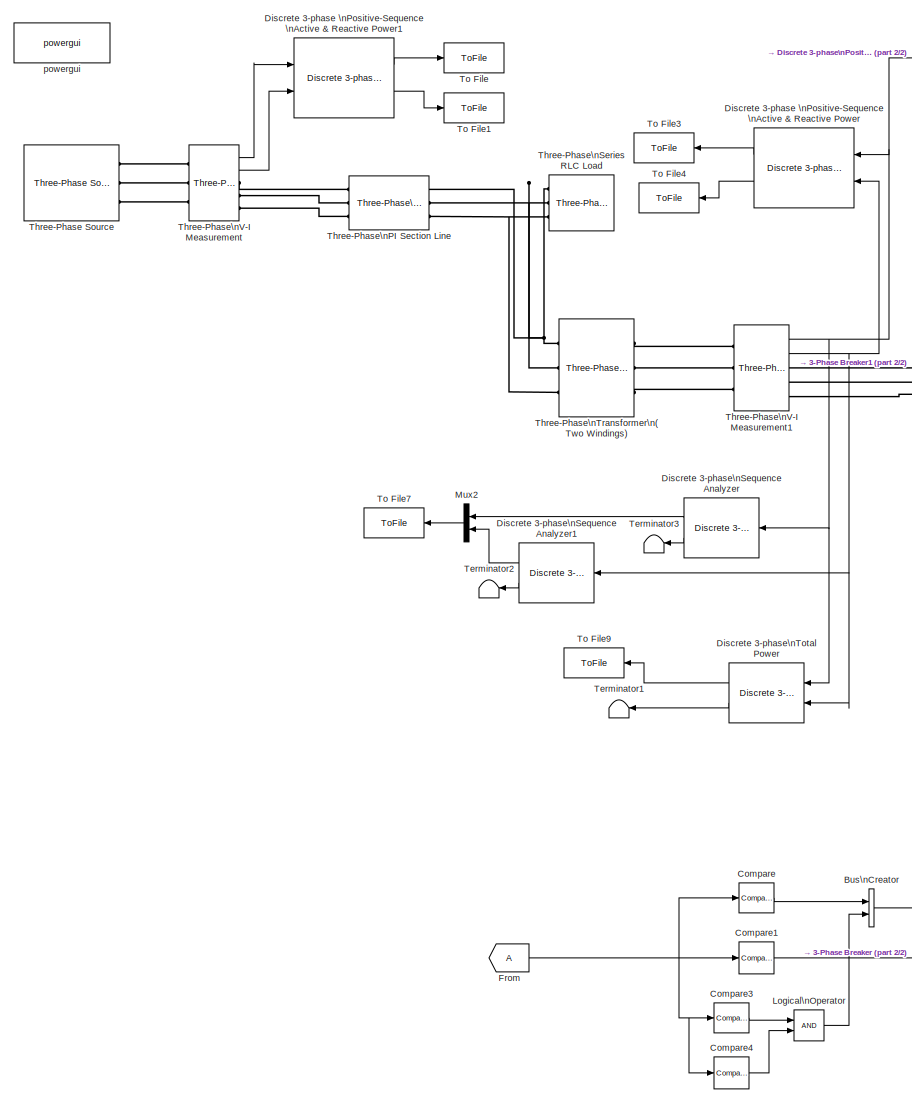
[diagram: root canvas - part 1/2, left side, full height]
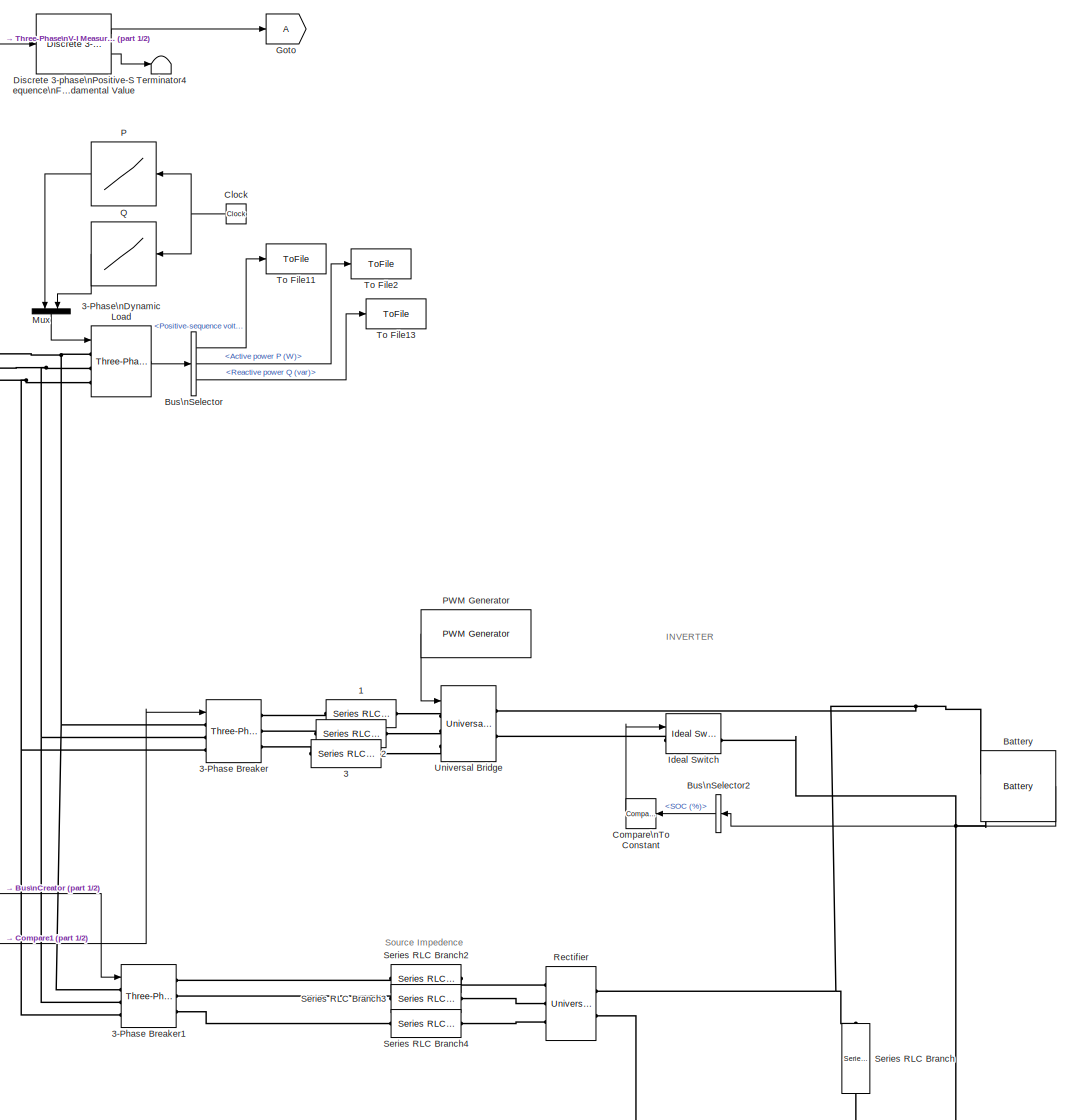
[diagram: root canvas - part 2/2, right side, full height]
MODEL MOTHERofALL3
KIND model
BLOCK [Reference] 1  REF=powerlib/Elements/Series RLC Branch
  BranchType = L
  Capacitance = 1e-6
  Inductance = 1
  InitialCurrent = 0
  InitialVoltage = 0
  LConnTagsString = __new0
  LeftPortType = p1
  Measurements = None
  PhysicalDomain = powersysdomain
  Ports = [0, 0, 0, 0, 0, 1, 1]
  RConnTagsString = __new0
  Resistance = 1
  RightPortType = p1
  SID = 85
  SetiL0 = off
  Setx0 = off
  SourceBlock = powerlib/Elements/Series RLC Branch
  SourceType = Series RLC Branch
  SubClassName = unknown
BLOCK [Reference] 2  REF=powerlib/Elements/Series RLC Branch
  BranchType = L
  Capacitance = 1e-6
  Inductance = 1
  InitialCurrent = 0
  InitialVoltage = 0
  LConnTagsString = __new0
  LeftPortType = p1
  Measurements = None
  PhysicalDomain = powersysdomain
  Ports = [0, 0, 0, 0, 0, 1, 1]
  RConnTagsString = __new0
  Resistance = 1
  RightPortType = p1
  SID = 86
  SetiL0 = off
  Setx0 = off
  SourceBlock = powerlib/Elements/Series RLC Branch
  SourceType = Series RLC Branch
  SubClassName = unknown
BLOCK [Reference] 3  REF=powerlib/Elements/Series RLC Branch
  BranchType = L
  Capacitance = 1e-6
  Inductance = 1
  InitialCurrent = 0
  InitialVoltage = 0
  LConnTagsString = __new0
  LeftPortType = p1
  Measurements = None
  PhysicalDomain = powersysdomain
  Ports = [0, 0, 0, 0, 0, 1, 1]
  RConnTagsString = __new0
  Resistance = 1
  RightPortType = p1
  SID = 87
  SetiL0 = off
  Setx0 = off
  SourceBlock = powerlib/Elements/Series RLC Branch
  SourceType = Series RLC Branch
  SubClassName = unknown
BLOCK [Reference] 3-Phase Breaker  REF=powerlib/Elements/Three-Phase Breaker
  BreakerResistance = 0.001
  External = on
  FunctionWithSeparateData = off
  GeneratePreprocessorConditionals = off
  InitialState = open
  Measurements = None
  Ports = [1, 0, 0, 0, 0, 3, 3]
  RTWMemSecDataConstants = Inherit from model
  RTWMemSecDataInternal = Inherit from model
  RTWMemSecDataParameters = Inherit from model
  RTWMemSecFuncExecute = Inherit from model
  RTWMemSecFuncInitTerm = Inherit from model
  SID = 88
  ShowPortLabels = FromPortIcon
  SnubberCapacitance = inf
  SnubberResistance = 1e6
  SourceBlock = powerlib/Elements/Three-Phase Breaker
  SourceType = Three-Phase Breaker
  SwitchA = on
  SwitchB = on
  SwitchC = on
  SwitchTimes = [4/60  10/60]
  SystemSampleTime = -1
BLOCK [Reference] 3-Phase Breaker1  REF=powerlib/Elements/Three-Phase Breaker
  BreakerResistance = 0.001
  External = on
  FunctionWithSeparateData = off
  GeneratePreprocessorConditionals = off
  InitialState = open
  Measurements = None
  Ports = [1, 0, 0, 0, 0, 3, 3]
  RTWMemSecDataConstants = Inherit from model
  RTWMemSecDataInternal = Inherit from model
  RTWMemSecDataParameters = Inherit from model
  RTWMemSecFuncExecute = Inherit from model
  RTWMemSecFuncInitTerm = Inherit from model
  SID = 89
  ShowPortLabels = FromPortIcon
  SnubberCapacitance = inf
  SnubberResistance = 1e6
  SourceBlock = powerlib/Elements/Three-Phase Breaker
  SourceType = Three-Phase Breaker
  SwitchA = on
  SwitchB = on
  SwitchC = on
  SwitchTimes = [4/60  10/60]
  SystemSampleTime = -1
BLOCK [Reference] 3-Phase\nDynamic Load  REF=powerlib/Elements/Three-Phase\nDynamic Load
  ActiveReactivePowers = [50 25]
  ExternalControl = on
  FunctionWithSeparateData = off
  GeneratePreprocessorConditionals = off
  LoadFlowParameters = [4 50 0 0 25]
  MinimumVoltage = 0.7
  NominalVoltage = [ 400 60 ]
  NpNq = [1  1]
  Ports = [1, 1, 0, 0, 0, 3]
  PositiveSequence = [0.292838 -10.4312]
  RTWMemSecDataConstants = Inherit from model
  RTWMemSecDataInternal = Inherit from model
  RTWMemSecDataParameters = Inherit from model
  RTWMemSecFuncExecute = Inherit from model
  RTWMemSecFuncInitTerm = Inherit from model
  SID = 9
  ShowPortLabels = FromPortIcon
  SourceBlock = powerlib/Elements/Three-Phase\nDynamic Load
  SourceType = Three-Phase Dynamic Load
  SystemSampleTime = -1
  TimeConstants = [0  0  0  0]
BLOCK [Reference] Battery  REF=electricdrivelib/Extra Sources/Battery
  BatType = Lead-Acid
  Batt_Tr = 30
  Dis_Char = off
  Dis_rate = 0.3
  FullV = 1.4136
  FunctionWithSeparateData = off
  GeneratePreprocessorConditionals = off
  MaxQ = 1.6154
  NomQ = 10
  NomV = 240
  Normal_OP = 1.4423
  Ports = [0, 1, 0, 0, 0, 2]
  PresetModel = off
  R = 0.008
  RTWMemSecDataConstants = Inherit from model
  RTWMemSecDataInternal = Inherit from model
  RTWMemSecDataParameters = Inherit from model
  RTWMemSecFuncExecute = Inherit from model
  RTWMemSecFuncInitTerm = Inherit from model
  SID = 90
  SOC = 80
  ShowDetailedParameters = off
  ShowPortLabels = FromPortIcon
  SourceBlock = electricdrivelib/Extra Sources/Battery
  SourceType = Battery
  SystemSampleTime = -1
  Units = Ampere-hour
  current = [1.5 3]
  expZone = [1.3017         0.3]
BLOCK [BusCreator] Bus\nCreator
  DisplayOption = bar
  Inputs = 2
  Ports = [2, 1]
  SID = 141
BLOCK [BusSelector] Bus\nSelector
  OutputSignals = Positive-sequence voltage V (pu),Active power P (W),Reactive power Q (var)
  Ports = [1, 3]
  SID = 67
BLOCK [BusSelector] Bus\nSelector2
  OutputSignals = SOC (%)
  Ports = [1, 1]
  SID = 91
BLOCK [Clock] Clock
  Decimation = 1
  SID = 12
BLOCK [Reference] Compare  REF=simulink/Logic and Bit\nOperations/Compare\nTo Constant
  FunctionWithSeparateData = off
  GeneratePreprocessorConditionals = off
  LogicOutDataTypeMode = uint8
  Ports = [1, 1]
  RTWMemSecDataConstants = Inherit from model
  RTWMemSecDataInternal = Inherit from model
  RTWMemSecDataParameters = Inherit from model
  RTWMemSecFuncExecute = Inherit from model
  RTWMemSecFuncInitTerm = Inherit from model
  SID = 92
  ShowPortLabels = FromPortIcon
  SourceBlock = simulink/Logic and Bit\nOperations/Compare\nTo Constant
  SourceType = Compare To Constant
  SystemSampleTime = -1
  ZeroCross = on
  const = 265
  relop = >=
BLOCK [Reference] Compare1  REF=simulink/Logic and Bit\nOperations/Compare\nTo Constant
  FunctionWithSeparateData = off
  GeneratePreprocessorConditionals = off
  LogicOutDataTypeMode = uint8
  Ports = [1, 1]
  RTWMemSecDataConstants = Inherit from model
  RTWMemSecDataInternal = Inherit from model
  RTWMemSecDataParameters = Inherit from model
  RTWMemSecFuncExecute = Inherit from model
  RTWMemSecFuncInitTerm = Inherit from model
  SID = 94
  ShowPortLabels = FromPortIcon
  SourceBlock = simulink/Logic and Bit\nOperations/Compare\nTo Constant
  SourceType = Compare To Constant
  SystemSampleTime = -1
  ZeroCross = on
  const = 260
  relop = <=
BLOCK [Reference] Compare3  REF=simulink/Logic and Bit\nOperations/Compare\nTo Constant
  FunctionWithSeparateData = off
  GeneratePreprocessorConditionals = off
  LogicOutDataTypeMode = uint8
  Ports = [1, 1]
  RTWMemSecDataConstants = Inherit from model
  RTWMemSecDataInternal = Inherit from model
  RTWMemSecDataParameters = Inherit from model
  RTWMemSecFuncExecute = Inherit from model
  RTWMemSecFuncInitTerm = Inherit from model
  SID = 95
  ShowPortLabels = FromPortIcon
  SourceBlock = simulink/Logic and Bit\nOperations/Compare\nTo Constant
  SourceType = Compare To Constant
  SystemSampleTime = -1
  ZeroCross = on
  const = 265
  relop = <
BLOCK [Reference] Compare4  REF=simulink/Logic and Bit\nOperations/Compare\nTo Constant
  FunctionWithSeparateData = off
  GeneratePreprocessorConditionals = off
  LogicOutDataTypeMode = uint8
  Ports = [1, 1]
  RTWMemSecDataConstants = Inherit from model
  RTWMemSecDataInternal = Inherit from model
  RTWMemSecDataParameters = Inherit from model
  RTWMemSecFuncExecute = Inherit from model
  RTWMemSecFuncInitTerm = Inherit from model
  SID = 96
  ShowPortLabels = FromPortIcon
  SourceBlock = simulink/Logic and Bit\nOperations/Compare\nTo Constant
  SourceType = Compare To Constant
  SystemSampleTime = -1
  ZeroCross = on
  const = 265
  relop = >
BLOCK [Reference] Compare\nTo Constant  REF=simulink/Logic and Bit\nOperations/Compare\nTo Constant
  FunctionWithSeparateData = off
  GeneratePreprocessorConditionals = off
  LogicOutDataTypeMode = uint8
  Ports = [1, 1]
  RTWMemSecDataConstants = Inherit from model
  RTWMemSecDataInternal = Inherit from model
  RTWMemSecDataParameters = Inherit from model
  RTWMemSecFuncExecute = Inherit from model
  RTWMemSecFuncInitTerm = Inherit from model
  SID = 93
  ShowPortLabels = FromPortIcon
  SourceBlock = simulink/Logic and Bit\nOperations/Compare\nTo Constant
  SourceType = Compare To Constant
  SystemSampleTime = -1
  ZeroCross = on
  const = 25
  relop = >=
BLOCK [Reference] Discrete 3-phase \nPositive-Sequence \nActive & Reactive Power  REF=powerlib_extras/Discrete\nMeasurements/Discrete 3-phase \nPositive-Sequence \nActive & Reactive Power
  Freq = 60
  FunctionWithSeparateData = off
  GeneratePreprocessorConditionals = off
  Par_Iinit = [0 0]
  Par_Vinit = [0 0]
  Ports = [2, 2]
  RTWMemSecDataConstants = Inherit from model
  RTWMemSecDataInternal = Inherit from model
  RTWMemSecDataParameters = Inherit from model
  RTWMemSecFuncExecute = Inherit from model
  RTWMemSecFuncInitTerm = Inherit from model
  SID = 34
  ShowPortLabels = FromPortIcon
  SourceBlock = powerlib_extras/Discrete\nMeasurements/Discrete 3-phase \nPositive-Sequence \nActive & Reactive Power
  SourceType = Discrete 3-phase Positive-Sequence Active & Reactive Power
  SystemSampleTime = -1
  Ts = 50e-6
BLOCK [Reference] Discrete 3-phase \nPositive-Sequence \nActive & Reactive Power1  REF=powerlib_extras/Discrete\nMeasurements/Discrete 3-phase \nPositive-Sequence \nActive & Reactive Power
  Freq = 60
  FunctionWithSeparateData = off
  GeneratePreprocessorConditionals = off
  Par_Iinit = [0 0]
  Par_Vinit = [0 0]
  Ports = [2, 2]
  RTWMemSecDataConstants = Inherit from model
  RTWMemSecDataInternal = Inherit from model
  RTWMemSecDataParameters = Inherit from model
  RTWMemSecFuncExecute = Inherit from model
  RTWMemSecFuncInitTerm = Inherit from model
  SID = 78
  ShowPortLabels = FromPortIcon
  SourceBlock = powerlib_extras/Discrete\nMeasurements/Discrete 3-phase \nPositive-Sequence \nActive & Reactive Power
  SourceType = Discrete 3-phase Positive-Sequence Active & Reactive Power
  SystemSampleTime = -1
  Ts = 50e-6
BLOCK [Reference] Discrete 3-phase\nPositive-Sequence\nFundamental Value  REF=powerlib_extras/Discrete\nMeasurements/Discrete 3-phase\nPositive-Sequence\nFundamental Value
  Freq = 60
  FunctionWithSeparateData = off
  GeneratePreprocessorConditionals = off
  Par_Init = [0 0]
  Ports = [1, 2]
  RTWMemSecDataConstants = Inherit from model
  RTWMemSecDataInternal = Inherit from model
  RTWMemSecDataParameters = Inherit from model
  RTWMemSecFuncExecute = Inherit from model
  RTWMemSecFuncInitTerm = Inherit from model
  SID = 147
  ShowPortLabels = FromPortIcon
  SourceBlock = powerlib_extras/Discrete\nMeasurements/Discrete 3-phase\nPositive-Sequence\nFundamental Value
  SourceType = Discrete 3-phase Positive-sequence fundamental value
  SystemSampleTime = -1
  Ts = 50e-6
BLOCK [Reference] Discrete 3-phase\nSequence Analyzer  REF=powerlib_extras/Discrete\nMeasurements/Discrete 3-phase\nSequence Analyzer
  Freq = 60
  FunctionWithSeparateData = off
  GeneratePreprocessorConditionals = off
  Par_Init = [0 0]
  Ports = [1, 2]
  RTWMemSecDataConstants = Inherit from model
  RTWMemSecDataInternal = Inherit from model
  RTWMemSecDataParameters = Inherit from model
  RTWMemSecFuncExecute = Inherit from model
  RTWMemSecFuncInitTerm = Inherit from model
  SID = 37
  ShowPortLabels = FromPortIcon
  SourceBlock = powerlib_extras/Discrete\nMeasurements/Discrete 3-phase\nSequence Analyzer
  SourceType = Discrete 3-Phase Sequence Analyzer
  SystemSampleTime = -1
  Ts = 50e-6
  n = 1
  seq = Positive
BLOCK [Reference] Discrete 3-phase\nSequence Analyzer1  REF=powerlib_extras/Discrete\nMeasurements/Discrete 3-phase\nSequence Analyzer
  Freq = 60
  FunctionWithSeparateData = off
  GeneratePreprocessorConditionals = off
  Par_Init = [0 0]
  Ports = [1, 2]
  RTWMemSecDataConstants = Inherit from model
  RTWMemSecDataInternal = Inherit from model
  RTWMemSecDataParameters = Inherit from model
  RTWMemSecFuncExecute = Inherit from model
  RTWMemSecFuncInitTerm = Inherit from model
  SID = 39
  ShowPortLabels = FromPortIcon
  SourceBlock = powerlib_extras/Discrete\nMeasurements/Discrete 3-phase\nSequence Analyzer
  SourceType = Discrete 3-Phase Sequence Analyzer
  SystemSampleTime = -1
  Ts = 50e-6
  n = 1
  seq = Positive
BLOCK [Reference] Discrete 3-phase\nTotal Power  REF=powerlib_extras/Discrete\nMeasurements/Discrete 3-phase\nTotal Power
  Freq = 60
  FunctionWithSeparateData = off
  GeneratePreprocessorConditionals = off
  Par_Iinit = [0 0]
  Par_Vinit = [0 0]
  Ports = [2, 2]
  RTWMemSecDataConstants = Inherit from model
  RTWMemSecDataInternal = Inherit from model
  RTWMemSecDataParameters = Inherit from model
  RTWMemSecFuncExecute = Inherit from model
  RTWMemSecFuncInitTerm = Inherit from model
  SID = 38
  ShowPortLabels = FromPortIcon
  SourceBlock = powerlib_extras/Discrete\nMeasurements/Discrete 3-phase\nTotal Power
  SourceType = Discrete 3-phase Total Power
  SystemSampleTime = -1
  Ts = 50e-6
BLOCK [From] From
  GotoTag = A
  SID = 81
BLOCK [Goto] Goto
  GotoTag = A
  SID = 80
  TagVisibility = local
BLOCK [Reference] Ideal Switch  REF=powerlib/Power\nElectronics/Ideal Switch
  Cs = inf
  FunctionWithSeparateData = off
  GeneratePreprocessorConditionals = off
  IC = 0
  Lon = 0
  Measurements = on
  Ports = [1, 1, 0, 0, 0, 1, 1]
  RTWMemSecDataConstants = Inherit from model
  RTWMemSecDataInternal = Inherit from model
  RTWMemSecDataParameters = Inherit from model
  RTWMemSecFuncExecute = Inherit from model
  RTWMemSecFuncInitTerm = Inherit from model
  Ron = 0.001
  Rs = 1e5
  SID = 113
  ShowPortLabels = FromPortIcon
  SourceBlock = powerlib/Power\nElectronics/Ideal Switch
  SourceType = Ideal Switch
  SystemSampleTime = -1
BLOCK [Logic] Logical\nOperator
  AllPortsSameDT = off
  OutDataTypeStr = boolean
  Ports = [2, 1]
  SID = 114
BLOCK [Mux] Mux
  DisplayOption = bar
  Inputs = 2
  Ports = [2, 1]
  SID = 13
BLOCK [Mux] Mux2
  DisplayOption = bar
  Inputs = 2
  Ports = [2, 1]
  SID = 42
BLOCK [Lookup] P
  InputValues = ts
  SID = 14
  SaturateOnIntegerOverflow = off
  Table = Ptotal
BLOCK [Reference] PWM Generator  REF=powerlib_extras/Control \nBlocks/PWM Generator
  Fc = 1080
  Freq = 50
  FunctionWithSeparateData = off
  GeneratePreprocessorConditionals = off
  GeneratorMode = 3-arm  bridge (6 pulses)
  Internal = on
  Phase = 0
  Ports = [0, 1]
  RTWMemSecDataConstants = Inherit from model
  RTWMemSecDataInternal = Inherit from model
  RTWMemSecDataParameters = Inherit from model
  RTWMemSecFuncExecute = Inherit from model
  RTWMemSecFuncInitTerm = Inherit from model
  SID = 124
  ShowPortLabels = FromPortIcon
  SourceBlock = powerlib_extras/Control \nBlocks/PWM Generator
  SourceType = PWM Generator
  SystemSampleTime = -1
  mIndex = 0.4
BLOCK [Lookup] Q
  InputValues = ts
  SID = 15
  SaturateOnIntegerOverflow = off
  Table = Qtotal
BLOCK [Reference] Rectifier  REF=powerlib/Power\nElectronics/Universal Bridge
  Arms = 3
  AttributesFormatString = \\n
  Device = Diodes
  ForwardVoltage = .8
  ForwardVoltages = [  0.8  0.8  ]
  FunctionWithSeparateData = off
  GTOparameters = [ 10e-6 , 20e-6 ]
  GeneratePreprocessorConditionals = off
  IGBTparameters = [ 1e-6 , 2e-6 ]
  Lon = 0
  Measurements = Device currents
  Measurements_2 = None
  Ports = [0, 0, 0, 0, 0, 3, 2]
  RTWMemSecDataConstants = Inherit from model
  RTWMemSecDataInternal = Inherit from model
  RTWMemSecDataParameters = Inherit from model
  RTWMemSecFuncExecute = Inherit from model
  RTWMemSecFuncInitTerm = Inherit from model
  Ron = 1e-3
  SID = 142
  ShowPortLabels = FromPortIcon
  SnubberCapacitance = 0.1e-6
  SnubberResistance = 100
  SourceBlock = powerlib/Power\nElectronics/Universal Bridge
  SourceType = Universal Bridge
  SystemSampleTime = -1
  converterType = Rectifier
BLOCK [Reference] Series RLC Branch  REF=powerlib/Elements/Series RLC Branch
  BranchType = C
  Capacitance = 470e-6
  Inductance = 1e-3
  InitialCurrent = 0
  InitialVoltage = 0
  LConnTagsString = __new0
  LeftPortType = p1
  Measurements = None
  PhysicalDomain = powersysdomain
  Ports = [0, 0, 0, 0, 0, 1, 1]
  RConnTagsString = __new0
  Resistance = 5
  RightPortType = p1
  SID = 130
  SetiL0 = off
  Setx0 = off
  SourceBlock = powerlib/Elements/Series RLC Branch
  SourceType = Series RLC Branch
  SubClassName = unknown
BLOCK [Reference] Series RLC Branch2  REF=powerlib/Elements/Series RLC Branch
  BranchType = RL
  Capacitance = 200e-6
  Inductance = 1e-3
  InitialCurrent = 0
  InitialVoltage = 0
  LConnTagsString = __new0
  LeftPortType = p1
  Measurements = None
  PhysicalDomain = powersysdomain
  Ports = [0, 0, 0, 0, 0, 1, 1]
  RConnTagsString = __new0
  Resistance = 0.5
  RightPortType = p1
  SID = 131
  SetiL0 = off
  Setx0 = off
  SourceBlock = powerlib/Elements/Series RLC Branch
  SourceType = Series RLC Branch
  SubClassName = unknown
BLOCK [Reference] Series RLC Branch3  REF=powerlib/Elements/Series RLC Branch
  BranchType = RL
  Capacitance = 200e-6
  Inductance = 1e-3
  InitialCurrent = 0
  InitialVoltage = 0
  LConnTagsString = __new0
  LeftPortType = p1
  Measurements = None
  PhysicalDomain = powersysdomain
  Ports = [0, 0, 0, 0, 0, 1, 1]
  RConnTagsString = __new0
  Resistance = 0.5
  RightPortType = p1
  SID = 132
  SetiL0 = off
  Setx0 = off
  SourceBlock = powerlib/Elements/Series RLC Branch
  SourceType = Series RLC Branch
  SubClassName = unknown
BLOCK [Reference] Series RLC Branch4  REF=powerlib/Elements/Series RLC Branch
  BranchType = RL
  Capacitance = 200e-6
  Inductance = 1e-3
  InitialCurrent = 0
  InitialVoltage = 0
  LConnTagsString = __new0
  LeftPortType = p1
  Measurements = None
  PhysicalDomain = powersysdomain
  Ports = [0, 0, 0, 0, 0, 1, 1]
  RConnTagsString = __new0
  Resistance = 0.5
  RightPortType = p1
  SID = 133
  SetiL0 = off
  Setx0 = off
  SourceBlock = powerlib/Elements/Series RLC Branch
  SourceType = Series RLC Branch
  SubClassName = unknown
BLOCK [Terminator] Terminator1
  SID = 79
BLOCK [Terminator] Terminator2
  SID = 47
BLOCK [Terminator] Terminator3
  SID = 48
BLOCK [Terminator] Terminator4
  SID = 148
BLOCK [Reference] Three-Phase Source  REF=powerlib/Electrical\nSources/Three-Phase Source
  BaseVoltage = 25e3
  BusType = swing
  Frequency = 60
  FunctionWithSeparateData = off
  GeneratePreprocessorConditionals = off
  Inductance = 0.000001
  InternalConnection = Yg
  PhaseAngle = 0
  Ports = [0, 0, 0, 0, 0, 0, 3]
  Pref = 0
  Qmax = inf
  Qmin = -inf
  Qref = 0
  RTWMemSecDataConstants = Inherit from model
  RTWMemSecDataInternal = Inherit from model
  RTWMemSecDataParameters = Inherit from model
  RTWMemSecFuncExecute = Inherit from model
  RTWMemSecFuncInitTerm = Inherit from model
  Resistance = 0.001
  SID = 1
  ShortCircuitLevel = 100e6
  ShowPortLabels = FromPortIcon
  SourceBlock = powerlib/Electrical\nSources/Three-Phase Source
  SourceType = Three-Phase Source
  SpecifyImpedance = off
  SystemSampleTime = -1
  Voltage = 13800
  XRratio = 7
BLOCK [Reference] Three-Phase\nPI Section Line  REF=powerlib/Elements/Three-Phase\nPI Section Line
  AttributesFormatString = \\n
  Capacitances = [12.74e-9 7.751e-9]
  Frequency = 60
  Inductances = [ 0.9337e-3  4.1264e-3]
  LConnTagsString = a|b|c
  LeftPortType = p1
  Length = 10
  PhysicalDomain = powersysdomain
  Ports = [0, 0, 0, 0, 0, 3, 3]
  RConnTagsString = A|B|C
  Resistances = [ 0.01273 0.3864]
  RightPortType = p1
  SID = 3
  SourceBlock = powerlib/Elements/Three-Phase\nPI Section Line
  SourceType = Three-Phase PI Section Line
  SubClassName = unknown
BLOCK [Reference] Three-Phase\nSeries RLC Load  REF=powerlib/Elements/Three-Phase\nSeries RLC Load
  ActivePower = 10e6
  AttributesFormatString = \\n
  CapacitivePower = 0
  Configuration = Y (grounded)
  InductivePower = 1000
  LConnTagsString = A|B|C
  LeftPortType = p1
  LoadType = constant Z
  Measurements = None
  NominalFrequency = 60
  NominalVoltage = 13800
  PhysicalDomain = powersysdomain
  Ports = [0, 0, 0, 0, 0, 3]
  RightPortType = p1
  SID = 4
  SourceBlock = powerlib/Elements/Three-Phase\nSeries RLC Load
  SourceType = Three-Phase Series RLC Load
  SubClassName = unknown
BLOCK [Reference] Three-Phase\nTransformer\n(Two Windings)  REF=powerlib/Elements/Three-Phase\nTransformer\n(Two Windings)
  BreakLoop = off
  DataFile = 'hysteresis'
  DataType = on
  FunctionWithSeparateData = off
  GeneratePreprocessorConditionals = off
  Hysteresis = off
  InitialFluxes = [1273.5 -1273.5 1114.3]
  Lm = 366
  Measurements = None
  MoreParameters = off
  NominalPower = [ 25e3 , 60 ]
  Ports = [0, 0, 0, 0, 0, 3, 3]
  RTWMemSecDataConstants = Inherit from model
  RTWMemSecDataInternal = Inherit from model
  RTWMemSecDataParameters = Inherit from model
  RTWMemSecFuncExecute = Inherit from model
  RTWMemSecFuncInitTerm = Inherit from model
  Rm = 1.3824e5
  SID = 28
  Saturation = [0 0;6.6653e-005 1910.3;0.027772 2419.7]
  SetInitialFlux = off
  SetSaturation = off
  ShowPortLabels = FromPortIcon
  SourceBlock = powerlib/Elements/Three-Phase\nTransformer\n(Two Windings)
  SourceType = Three-Phase Transformer (Two Windings)
  SystemSampleTime = -1
  TransfoNumber = 1
  UNITS = SI
  Winding1 = [13800 27.648 0.220022]
  Winding1Connection = Yg
  Winding2 = [240 0.00384 0]
  Winding2Connection = Yg
BLOCK [Reference] Three-Phase\nV-I Measurement  REF=powerlib/Measurements/Three-Phase\nV-I Measurement
  CurrentMeasurement = yes
  FunctionWithSeparateData = off
  GeneratePreprocessorConditionals = off
  Ipu = off
  LabelI = Iabc
  LabelV = Vabc
  OutputType = Complex
  PSBequivalent = 0
  Pbase = 100e6
  PhasorSimulation = off
  Ports = [0, 2, 0, 0, 0, 3, 3]
  RTWMemSecDataConstants = Inherit from model
  RTWMemSecDataInternal = Inherit from model
  RTWMemSecDataParameters = Inherit from model
  RTWMemSecFuncExecute = Inherit from model
  RTWMemSecFuncInitTerm = Inherit from model
  SID = 2
  SetLabelI = off
  SetLabelV = off
  ShowPortLabels = FromPortIcon
  SourceBlock = powerlib/Measurements/Three-Phase\nV-I Measurement
  SourceType = Three-Phase VI Measurement
  SystemSampleTime = -1
  Vbase = 500e3
  VoltageMeasurement = phase-to-ground
  Vpu = off
  VpuLL = off
BLOCK [Reference] Three-Phase\nV-I Measurement1  REF=powerlib/Measurements/Three-Phase\nV-I Measurement
  CurrentMeasurement = yes
  FunctionWithSeparateData = off
  GeneratePreprocessorConditionals = off
  Ipu = off
  LabelI = Iabc
  LabelV = Vabc
  OutputType = Complex
  PSBequivalent = 0
  Pbase = 100e6
  PhasorSimulation = off
  Ports = [0, 2, 0, 0, 0, 3, 3]
  RTWMemSecDataConstants = Inherit from model
  RTWMemSecDataInternal = Inherit from model
  RTWMemSecDataParameters = Inherit from model
  RTWMemSecFuncExecute = Inherit from model
  RTWMemSecFuncInitTerm = Inherit from model
  SID = 7
  SetLabelI = off
  SetLabelV = off
  ShowPortLabels = FromPortIcon
  SourceBlock = powerlib/Measurements/Three-Phase\nV-I Measurement
  SourceType = Three-Phase VI Measurement
  SystemSampleTime = -1
  Vbase = 240
  VoltageMeasurement = phase-to-phase
  Vpu = off
  VpuLL = off
BLOCK [ToFile] To File
  Decimation = 200
  Filename = v1.mat
  MatrixName = v1
  SID = 49
BLOCK [ToFile] To File1
  Decimation = 200
  Filename = i1.mat
  MatrixName = i1
  SID = 50
BLOCK [ToFile] To File11
  Decimation = 20000
  Filename = vload1.mat
  MatrixName = vl1
  SID = 60
BLOCK [ToFile] To File13
  Decimation = 20000
  Filename = qload1.mat
  MatrixName = ql1
  SID = 69
BLOCK [ToFile] To File2
  Decimation = 20000
  Filename = pload1.mat
  MatrixName = pl1
  SID = 68
BLOCK [ToFile] To File3
  Decimation = 20000
  Filename = magVI.mat
  MatrixName = vi
  SID = 52
BLOCK [ToFile] To File4
  Decimation = 20000
  Filename = magPQ.mat
  MatrixName = pq
  SID = 53
BLOCK [ToFile] To File7
  Decimation = 20000
  Filename = viseq.mat
  MatrixName = viseq
  SID = 56
BLOCK [ToFile] To File9
  Decimation = 200
  Filename = pinst.mat
  MatrixName = pinst
  SID = 58
BLOCK [Reference] Universal Bridge  REF=powerlib/Power\nElectronics/Universal Bridge
  Arms = 3
  Device = IGBT / Diodes
  ForwardVoltage = 0
  ForwardVoltages = [  0  0  ]
  FunctionWithSeparateData = off
  GTOparameters = [ 10e-6 , 20e-6 ]
  GeneratePreprocessorConditionals = off
  IGBTparameters = [ 1e-6 , 2e-6 ]
  Lon = 0
  Measurements = None
  Measurements_2 = None
  Ports = [1, 0, 0, 0, 0, 3, 2]
  RTWMemSecDataConstants = Inherit from model
  RTWMemSecDataInternal = Inherit from model
  RTWMemSecDataParameters = Inherit from model
  RTWMemSecFuncExecute = Inherit from model
  RTWMemSecFuncInitTerm = Inherit from model
  Ron = 1e-3
  SID = 135
  ShowPortLabels = FromPortIcon
  SnubberCapacitance = inf
  SnubberResistance = 1e5
  SourceBlock = powerlib/Power\nElectronics/Universal Bridge
  SourceType = Universal Bridge
  SystemSampleTime = -1
  converterType = Rectifier
BLOCK [Reference] powergui  REF=powerlib/powergui
  DisableRonSwitches = off
  DisableSnubberDevices = off
  DisableVfSwitches = off
  DisplayEquations = off
  DisplayStyle = 1
  EnableUseOfTLC = off
  ErrMax = 1e-4
  FreqAxis = off
  FunctionMessages = off
  FunctionWithSeparateData = off
  GeneratePreprocessorConditionals = off
  HookPort = off
  Interpol = off
  Iterations = 50
  MaxFrequency = 1000
  Pbase = 100e6
  Ports = []
  Priority = 1
  RTWMemSecDataConstants = Inherit from model
  RTWMemSecDataInternal = Inherit from model
  RTWMemSecDataParameters = Inherit from model
  RTWMemSecFuncExecute = Inherit from model
  RTWMemSecFuncInitTerm = Inherit from model
  ResistiveCurrentMeasurement = off
  RestoreLinks = warning
  SID = 27
  SPID = off
  SampleTime = 50e-4
  ShowGrid = off
  ShowPortLabels = FromPortIcon
  SourceBlock = powerlib/powergui
  SourceType = PSB option menu block
  StartTime = 0.0
  SwTol = 0
  SystemSampleTime = -1
  UnitsV = kV
  UnitsW = MW
  UserData = DataTag0
  UserDataPersistent = on
  Xlog = on
  Ylog = off
  ZoomFFT = off
  cycles = 1
  display = off
  echomessages = off
  frequency = 60
  frequencyindice = 60
  frequencyindicesteady = 1
  methode = off
  save = off
  variable = ZData
  x0status = blocks
ANNOTATION (root): INVERTER
ANNOTATION (root): Source Impedence
LINE 3-Phase\nDynamic Load:1 -> Bus\nSelector:1
LINE Battery:1 -> Bus\nSelector2:1
LINE Bus\nCreator:1 -> 3-Phase Breaker1:1
LINE Bus\nSelector2:1 -> Compare\nTo Constant:1
LINE Bus\nSelector:1 -> To File11:1
LINE Bus\nSelector:2 -> To File2:1
LINE Bus\nSelector:3 -> To File13:1
NET Clock:1 -> P:1, Q:1
LINE Compare1:1 -> 3-Phase Breaker:1
LINE Compare3:1 -> Logical\nOperator:1
LINE Compare4:1 -> Logical\nOperator:2
LINE Compare:1 -> Bus\nCreator:1
LINE Compare\nTo Constant:1 -> Ideal Switch:1
LINE Discrete 3-phase \nPositive-Sequence \nActive & Reactive Power1:1 -> To File:1
LINE Discrete 3-phase \nPositive-Sequence \nActive & Reactive Power1:2 -> To File1:1
LINE Discrete 3-phase \nPositive-Sequence \nActive & Reactive Power:1 -> To File3:1
LINE Discrete 3-phase \nPositive-Sequence \nActive & Reactive Power:2 -> To File4:1
LINE Discrete 3-phase\nPositive-Sequence\nFundamental Value:1 -> Goto:1
LINE Discrete 3-phase\nPositive-Sequence\nFundamental Value:2 -> Terminator4:1
LINE Discrete 3-phase\nSequence Analyzer1:1 -> Mux2:2
LINE Discrete 3-phase\nSequence Analyzer1:2 -> Terminator2:1
LINE Discrete 3-phase\nSequence Analyzer:1 -> Mux2:1
LINE Discrete 3-phase\nSequence Analyzer:2 -> Terminator3:1
LINE Discrete 3-phase\nTotal Power:1 -> To File9:1
LINE Discrete 3-phase\nTotal Power:2 -> Terminator1:1
NET From:1 -> Compare1:1, Compare3:1, Compare4:1, Compare:1
LINE Logical\nOperator:1 -> Bus\nCreator:2
LINE Mux2:1 -> To File7:1
LINE Mux:1 -> 3-Phase\nDynamic Load:1
LINE P:1 -> Mux:1
LINE PWM Generator:1 -> Universal Bridge:1
LINE Q:1 -> Mux:2
NET Three-Phase\nV-I Measurement1:1 -> Discrete 3-phase \nPositive-Sequence \nActive & Reactive Power:1, Discrete 3-phase\nPositive-Sequence\nFundamental Value:1, Discrete 3-phase\nSequence Analyzer:1, Discrete 3-phase\nTotal Power:1
NET Three-Phase\nV-I Measurement1:2 -> Discrete 3-phase \nPositive-Sequence \nActive & Reactive Power:2, Discrete 3-phase\nSequence Analyzer1:1, Discrete 3-phase\nTotal Power:2
LINE Three-Phase\nV-I Measurement:1 -> Discrete 3-phase \nPositive-Sequence \nActive & Reactive Power1:1
LINE Three-Phase\nV-I Measurement:2 -> Discrete 3-phase \nPositive-Sequence \nActive & Reactive Power1:2
PLINE 1:LConn1 -- Universal Bridge:LConn1
PLINE 1:RConn1 -- 3-Phase Breaker:RConn1
PLINE 2:LConn1 -- Universal Bridge:LConn2
PLINE 2:RConn1 -- 3-Phase Breaker:RConn2
PNET net1: 3-Phase Breaker1:LConn1 -- 3-Phase Breaker:LConn1 -- 3-Phase\nDynamic Load:LConn1 -- Three-Phase\nV-I Measurement1:RConn1
PNET net2: 3-Phase Breaker1:LConn2 -- 3-Phase Breaker:LConn2 -- 3-Phase\nDynamic Load:LConn2 -- Three-Phase\nV-I Measurement1:RConn2
PNET net3: 3-Phase Breaker1:LConn3 -- 3-Phase Breaker:LConn3 -- 3-Phase\nDynamic Load:LConn3 -- Three-Phase\nV-I Measurement1:RConn3
PLINE 3-Phase Breaker1:RConn1 -- Series RLC Branch2:RConn1
PLINE 3-Phase Breaker1:RConn2 -- Series RLC Branch3:RConn1
PLINE 3-Phase Breaker1:RConn3 -- Series RLC Branch4:RConn1
PLINE 3-Phase Breaker:RConn3 -- 3:RConn1
PLINE 3:LConn1 -- Universal Bridge:LConn3
PNET net4: Battery:LConn1 -- Rectifier:RConn1 -- Series RLC Branch:LConn1 -- Universal Bridge:RConn1
PNET net5: Battery:LConn2 -- Ideal Switch:RConn1 -- Rectifier:RConn2 -- Series RLC Branch:RConn1
PLINE Ideal Switch:LConn1 -- Universal Bridge:RConn2
PLINE Rectifier:LConn1 -- Series RLC Branch2:LConn1
PLINE Rectifier:LConn2 -- Series RLC Branch3:LConn1
PLINE Rectifier:LConn3 -- Series RLC Branch4:LConn1
PLINE Three-Phase Source:RConn1 -- Three-Phase\nV-I Measurement:LConn1
PLINE Three-Phase Source:RConn2 -- Three-Phase\nV-I Measurement:LConn2
PLINE Three-Phase Source:RConn3 -- Three-Phase\nV-I Measurement:LConn3
PLINE Three-Phase\nPI Section Line:LConn1 -- Three-Phase\nV-I Measurement:RConn1
PLINE Three-Phase\nPI Section Line:LConn2 -- Three-Phase\nV-I Measurement:RConn2
PLINE Three-Phase\nPI Section Line:LConn3 -- Three-Phase\nV-I Measurement:RConn3
PNET net6: Three-Phase\nPI Section Line:RConn1 -- Three-Phase\nSeries RLC Load:LConn1 -- Three-Phase\nTransformer\n(Two Windings):LConn1
PNET net7: Three-Phase\nPI Section Line:RConn2 -- Three-Phase\nSeries RLC Load:LConn2 -- Three-Phase\nTransformer\n(Two Windings):LConn2
PNET net8: Three-Phase\nPI Section Line:RConn3 -- Three-Phase\nSeries RLC Load:LConn3 -- Three-Phase\nTransformer\n(Two Windings):LConn3
PLINE Three-Phase\nTransformer\n(Two Windings):RConn1 -- Three-Phase\nV-I Measurement1:LConn1
PLINE Three-Phase\nTransformer\n(Two Windings):RConn2 -- Three-Phase\nV-I Measurement1:LConn2
PLINE Three-Phase\nTransformer\n(Two Windings):RConn3 -- Three-Phase\nV-I Measurement1:LConn3
note: NET lines group one-source signal fan-out (src -> all destinations, sorted); 1:1 wires keep LINE; PNET lines group multi-terminal physical nets as a canonical sorted terminal list (undirected conserving connections); 2-terminal nets keep the pairwise PLINE form
